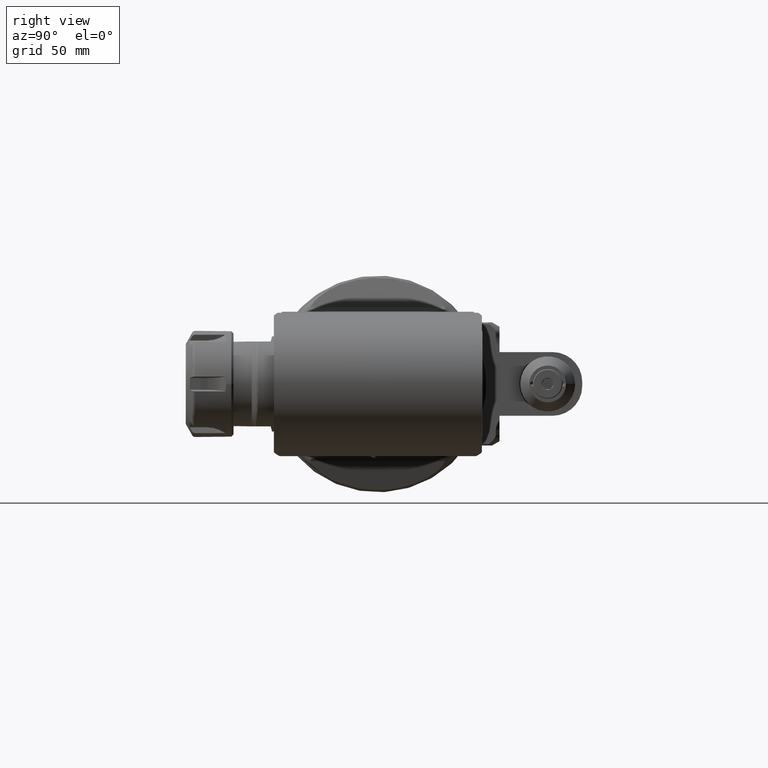
[diagram: clean part render]
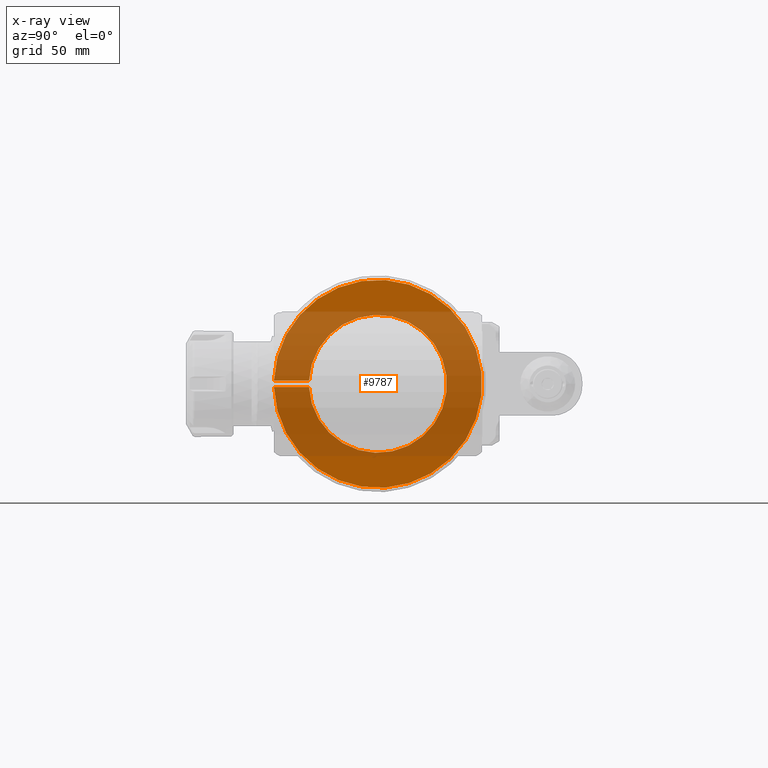
[diagram: x-ray — body ghosted, one internal face saturated and labeled with its STEP entity id]
A machine part, right view, then the same camera in x-ray: the body is ghosted and one INTERNAL B-rep face — a face not visible from any outside direction — is saturated and labeled: STEP entity #9787.
In plain terms, the highlighted planar face has unit normal (1, 0, 0).
Its self-contained STEP definition (entity closure, byte-faithful):
#1052=LINE('',#20265,#1788);
#1057=LINE('',#20299,#1793);
#1788=VECTOR('',#12222,16.51166927349);
#1793=VECTOR('',#12233,16.51166927349);
#2472=FACE_OUTER_BOUND('',#3035,.T.);
#3035=EDGE_LOOP('',(#7867,#7868,#7869,#7870));
#3530=CIRCLE('',#10526,49.);
#3533=CIRCLE('',#10531,32.5);
#4360=VERTEX_POINT('',#20254);
#4361=VERTEX_POINT('',#20258);
#4362=VERTEX_POINT('',#20264);
#4370=VERTEX_POINT('',#20298);
#5603=EDGE_CURVE('',#4361,#4360,#3530,.T.);
#5605=EDGE_CURVE('',#4362,#4361,#1052,.T.);
#5614=EDGE_CURVE('',#4360,#4370,#1057,.T.);
#5615=EDGE_CURVE('',#4370,#4362,#3533,.T.);
#7867=ORIENTED_EDGE('',*,*,#5603,.T.);
#7868=ORIENTED_EDGE('',*,*,#5614,.T.);
#7869=ORIENTED_EDGE('',*,*,#5615,.T.);
#7870=ORIENTED_EDGE('',*,*,#5605,.T.);
#9419=PLANE('',#10530);
#9787=ADVANCED_FACE('',(#2472),#9419,.T.);
#10526=AXIS2_PLACEMENT_3D('',#20259,#12218,#12219);
#10530=AXIS2_PLACEMENT_3D('',#20297,#12231,#12232);
#10531=AXIS2_PLACEMENT_3D('',#20300,#12234,#12235);
#12218=DIRECTION('center_axis',(1.,0.,0.));
#12219=DIRECTION('ref_axis',(0.,1.,0.));
#12222=DIRECTION('',(0.,-1.,0.));
#12231=DIRECTION('center_axis',(1.,0.,0.));
#12232=DIRECTION('ref_axis',(0.,-1.,0.));
#12233=DIRECTION('',(0.,1.,0.));
#12234=DIRECTION('center_axis',(-1.,0.,0.));
#12235=DIRECTION('ref_axis',(0.,-0.998934343430642,0.0461538461538519));
#20254=CARTESIAN_POINT('',(-12.,-48.97703543499,1.5));
#20258=CARTESIAN_POINT('',(-12.,-48.97703543499,-1.5));
#20259=CARTESIAN_POINT('Origin',(-12.,0.,0.));
#20264=CARTESIAN_POINT('',(-12.,-32.4653661615,-1.5));
#20265=CARTESIAN_POINT('',(-12.,-32.4653661615,-1.5));
#20297=CARTESIAN_POINT('Origin',(-12.,-49.13074005203,0.));
#20298=CARTESIAN_POINT('',(-12.,-32.4653661615,1.5));
#20299=CARTESIAN_POINT('',(-12.,-48.97703543499,1.5));
#20300=CARTESIAN_POINT('Origin',(-12.,0.,0.));